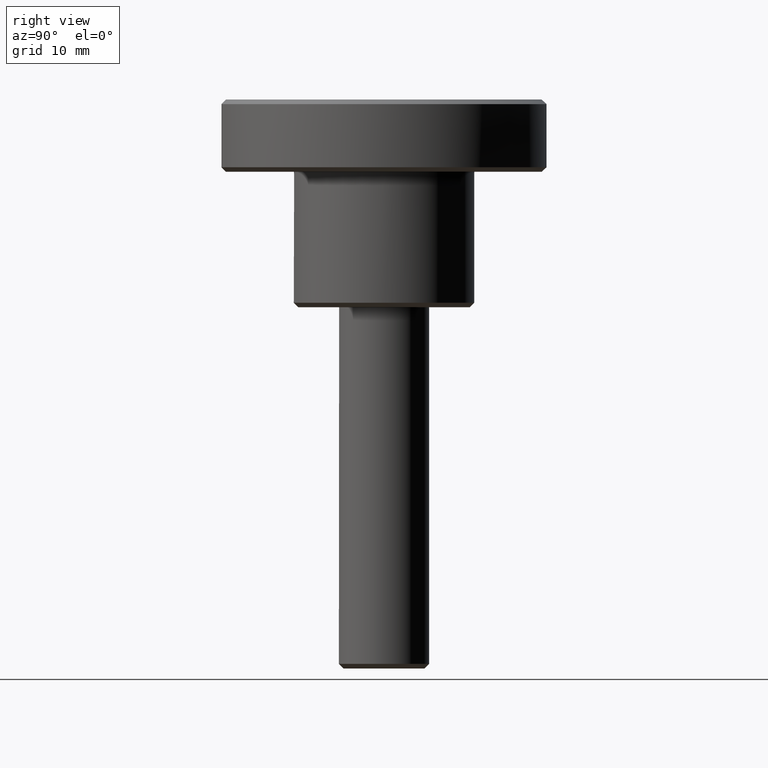
[diagram: clean part render]
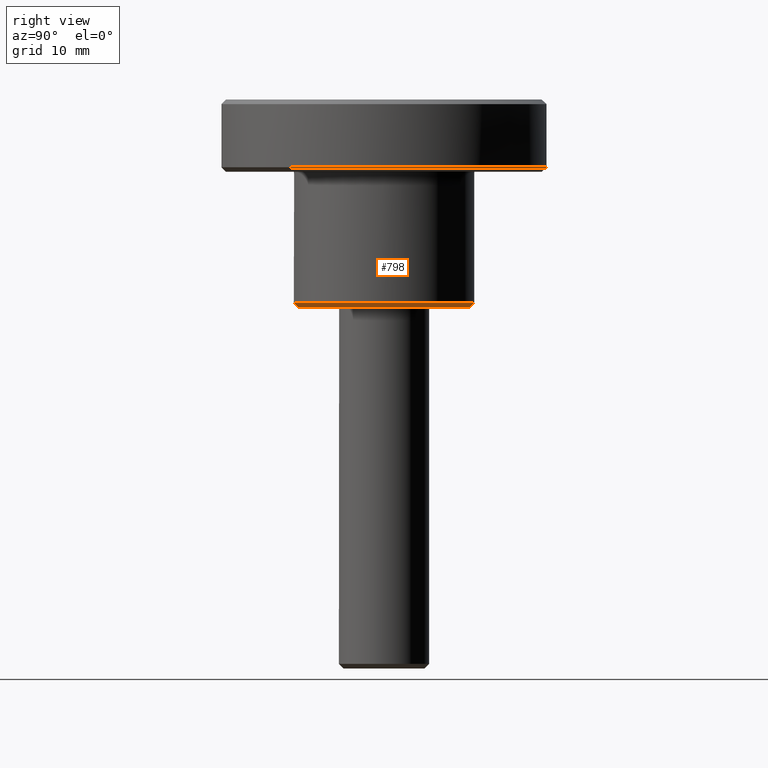
[diagram: same view with one face highlighted and labeled with its STEP entity id]
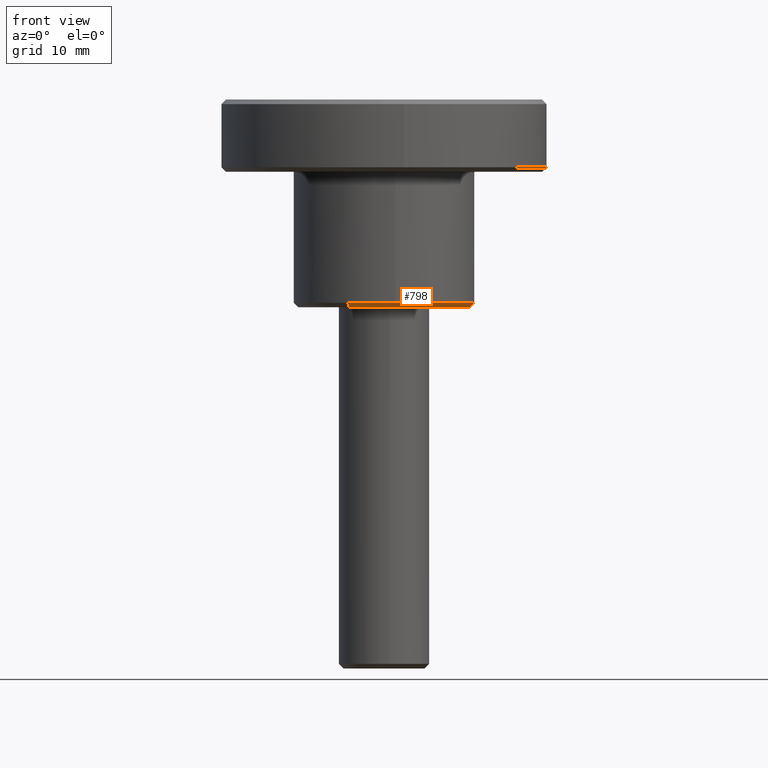
[diagram: same view with one face highlighted and labeled with its STEP entity id]
A machine part, right view. The second image highlights one B-rep face of the part: STEP entity #798.
A second angle (front view) of the same face is appended — the face is thin or edge-on in the first view.
In plain terms, the highlighted face is a freeform B-spline surface patch.
Its self-contained STEP definition (entity closure, byte-faithful):
#677=CARTESIAN_POINT('',(-3.834993910984958,-8.677872893325199,-0.012499999999999));
#678=CARTESIAN_POINT('',(-1.963370728928781,-9.504995345460285,-0.012499999999999));
#679=CARTESIAN_POINT('',(0.082793005540822,-9.487138745071324,-0.012499999999999));
#680=CARTESIAN_POINT('',(9.569931750612147,-9.404345739530502,-0.012499999999999));
#681=CARTESIAN_POINT('',(9.487138745071324,0.082793005540822,-0.012499999999999));
#682=CARTESIAN_POINT('',(9.404345739530502,9.569931750612147,-0.012499999999999));
#683=CARTESIAN_POINT('',(-0.082793005540822,9.487138745071324,-0.012499999999999));
#684=CARTESIAN_POINT('',(-4.047333330101089,-9.158357225791594,0.512812499999944));
#685=CARTESIAN_POINT('',(-2.072080419157019,-10.031276543606490,0.512812499999944));
#686=CARTESIAN_POINT('',(0.087377163719812,-10.012431242780970,0.512812499999944));
#687=CARTESIAN_POINT('',(10.099808406500783,-9.925054079061161,0.512812499999944));
#688=CARTESIAN_POINT('',(10.012431242780970,0.087377163719812,0.512812499999944));
#689=CARTESIAN_POINT('',(9.925054079061161,10.099808406500783,0.512812499999944));
#690=CARTESIAN_POINT('',(-0.087377163719812,10.012431242780970,0.512812499999944));
#698=(BOUNDED_SURFACE()B_SPLINE_SURFACE(2,1,((#677,#684),(#678,#685),(#679,#686),(#680,#687),(#681,#688),(#682,#689),(#683,#690)),.UNSPECIFIED.,.F.,.F.,.U.)B_SPLINE_SURFACE_WITH_KNOTS((3,2,2,3),(2,2),(0.0,4.645135863198720,21.234906803194139,37.824677743189568),(0.0,1.0),.UNSPECIFIED.)GEOMETRIC_REPRESENTATION_ITEM()RATIONAL_B_SPLINE_SURFACE(((0.881905454174416,0.881905454174416),(0.917989898732233,0.917989898732233),(1.0,1.0),(0.707106781186548,0.707106781186548),(1.0,1.0),(0.707106781186548,0.707106781186548),(1.0,1.0)))REPRESENTATION_ITEM('')SURFACE());
#699=CARTESIAN_POINT('',(-4.042154319933774,-9.146638095712453,0.500000000004826));
#700=VERTEX_POINT('',#699);
#701=CARTESIAN_POINT('',(1.241261573678535,-9.922664445871554,0.499999999999924));
#702=VERTEX_POINT('',#701);
#703=CARTESIAN_POINT('',(-4.042154319933774,-9.146638095712453,0.500000000004826));
#704=CARTESIAN_POINT('',(-2.111156172579415,-10.0,0.499999999999945));
#705=CARTESIAN_POINT('',(0.0,-10.0,0.499999999999945));
#706=CARTESIAN_POINT('',(0.623039943804720,-10.0,0.499999999999945));
#707=CARTESIAN_POINT('',(1.241261573678535,-9.922664445871554,0.499999999999924));
#715=(BOUNDED_CURVE()B_SPLINE_CURVE(2,(#703,#704,#705,#706,#707),.UNSPECIFIED.,.F.,.U.)B_SPLINE_CURVE_WITH_KNOTS((3,2,3),(0.181361578458122,0.250000000000000,0.271473615442755),.UNSPECIFIED.)CURVE()GEOMETRIC_REPRESENTATION_ITEM()RATIONAL_B_SPLINE_CURVE((0.883326595749971,0.919585087121299,1.0,0.974842094613637,0.954006038712170))REPRESENTATION_ITEM(''));
#716=EDGE_CURVE('',#700,#702,#715,.T.);
#717=ORIENTED_EDGE('',*,*,#716,.F.);
#718=CARTESIAN_POINT('',(-3.840046603939930,-8.689306190925844,4.884049E-012));
#719=VERTEX_POINT('',#718);
#720=CARTESIAN_POINT('',(-3.840046603939930,-8.689306190925844,4.884049E-012));
#721=CARTESIAN_POINT('',(-4.042154319933774,-9.146638095712453,0.500000000004826));
#722=QUASI_UNIFORM_CURVE('',1,(#720,#721),.UNSPECIFIED.,.F.,.U.);
#723=EDGE_CURVE('',#719,#700,#722,.T.);
#724=ORIENTED_EDGE('',*,*,#723,.F.);
#725=CARTESIAN_POINT('',(9.500000000000000,0.0,0.0));
#726=VERTEX_POINT('',#725);
#727=CARTESIAN_POINT('',(9.500000000000000,0.0,0.0));
#728=CARTESIAN_POINT('',(9.500000000000000,-9.500000000000000,0.0));
#729=CARTESIAN_POINT('',(0.0,-9.500000000000000,0.0));
#730=CARTESIAN_POINT('',(-2.005598363953585,-9.500000000000000,0.0));
#731=CARTESIAN_POINT('',(-3.840046603939931,-8.689306190925844,4.884049E-012));
#739=(BOUNDED_CURVE()B_SPLINE_CURVE(2,(#727,#728,#729,#730,#731),.UNSPECIFIED.,.F.,.U.)B_SPLINE_CURVE_WITH_KNOTS((3,2,3),(0.500000000000000,0.750000000000000,0.818638421541977),.UNSPECIFIED.)CURVE()GEOMETRIC_REPRESENTATION_ITEM()RATIONAL_B_SPLINE_CURVE((1.0,0.707106781186548,1.0,0.919585087121183,0.883326595749867))REPRESENTATION_ITEM(''));
#740=EDGE_CURVE('',#726,#719,#739,.T.);
#741=ORIENTED_EDGE('',*,*,#740,.F.);
#742=CARTESIAN_POINT('',(-0.082902087236695,9.499638269109902,2.931058E-013));
#743=VERTEX_POINT('',#742);
#744=CARTESIAN_POINT('',(-0.082902087236695,9.499638269109902,2.931058E-013));
#745=CARTESIAN_POINT('',(-0.041451832798805,9.500000000000000,0.0));
#746=CARTESIAN_POINT('',(0.0,9.500000000000000,0.0));
#747=CARTESIAN_POINT('',(9.500000000000000,9.500000000000000,0.0));
#748=CARTESIAN_POINT('',(9.500000000000000,0.0,0.0));
#756=(BOUNDED_CURVE()B_SPLINE_CURVE(2,(#744,#745,#746,#747,#748),.UNSPECIFIED.,.F.,.U.)B_SPLINE_CURVE_WITH_KNOTS((3,2,3),(0.248460105664934,0.250000000000000,0.500000000000000),.UNSPECIFIED.)CURVE()GEOMETRIC_REPRESENTATION_ITEM()RATIONAL_B_SPLINE_CURVE((0.996414028100222,0.998195901566279,1.0,0.707106781186548,1.0))REPRESENTATION_ITEM(''));
#757=EDGE_CURVE('',#743,#726,#756,.T.);
#758=ORIENTED_EDGE('',*,*,#757,.F.);
#759=CARTESIAN_POINT('',(-0.087264279312552,9.999619240028604,0.499999999999829));
#760=VERTEX_POINT('',#759);
#761=CARTESIAN_POINT('',(-0.082902087236695,9.499638269109902,2.931058E-013));
#762=CARTESIAN_POINT('',(-0.087264279312552,9.999619240028604,0.499999999999829));
#763=QUASI_UNIFORM_CURVE('',1,(#761,#762),.UNSPECIFIED.,.F.,.U.);
#764=EDGE_CURVE('',#743,#760,#763,.T.);
#765=ORIENTED_EDGE('',*,*,#764,.T.);
#766=CARTESIAN_POINT('',(10.0,0.0,0.499999999999945));
#767=VERTEX_POINT('',#766);
#768=CARTESIAN_POINT('',(10.0,0.0,0.499999999999945));
#769=CARTESIAN_POINT('',(10.000000000000002,10.000000000000002,0.499999999999945));
#770=CARTESIAN_POINT('',(0.0,10.0,0.499999999999945));
#771=CARTESIAN_POINT('',(-0.043632970340702,10.0,0.499999999999945));
#772=CARTESIAN_POINT('',(-0.087264279312552,9.999619240028604,0.499999999999829));
#780=(BOUNDED_CURVE()B_SPLINE_CURVE(2,(#768,#769,#770,#771,#772),.UNSPECIFIED.,.F.,.U.)B_SPLINE_CURVE_WITH_KNOTS((3,2,3),(0.500000000000000,0.750000000000000,0.751539875387094),.UNSPECIFIED.)CURVE()GEOMETRIC_REPRESENTATION_ITEM()RATIONAL_B_SPLINE_CURVE((1.0,0.707106781186548,1.0,0.998195923765210,0.996414071951143))REPRESENTATION_ITEM(''));
#781=EDGE_CURVE('',#767,#760,#780,.T.);
#782=ORIENTED_EDGE('',*,*,#781,.F.);
#783=CARTESIAN_POINT('',(1.241261573678535,-9.922664445871554,0.499999999999924));
#784=CARTESIAN_POINT('',(10.000000000000002,-8.827002539573293,0.499999999999945));
#785=CARTESIAN_POINT('',(10.0,0.0,0.499999999999945));
#793=(BOUNDED_CURVE()B_SPLINE_CURVE(2,(#783,#784,#785),.UNSPECIFIED.,.F.,.U.)B_SPLINE_CURVE_WITH_KNOTS((3,3),(0.271473615442755,0.500000000000000),.UNSPECIFIED.)CURVE()GEOMETRIC_REPRESENTATION_ITEM()RATIONAL_B_SPLINE_CURVE((0.954006038712170,0.732264686572910,1.0))REPRESENTATION_ITEM(''));
#794=EDGE_CURVE('',#702,#767,#793,.T.);
#795=ORIENTED_EDGE('',*,*,#794,.F.);
#796=EDGE_LOOP('',(#717,#724,#741,#758,#765,#782,#795));
#797=FACE_OUTER_BOUND('',#796,.T.);
#798=ADVANCED_FACE('',(#797),#698,.T.);